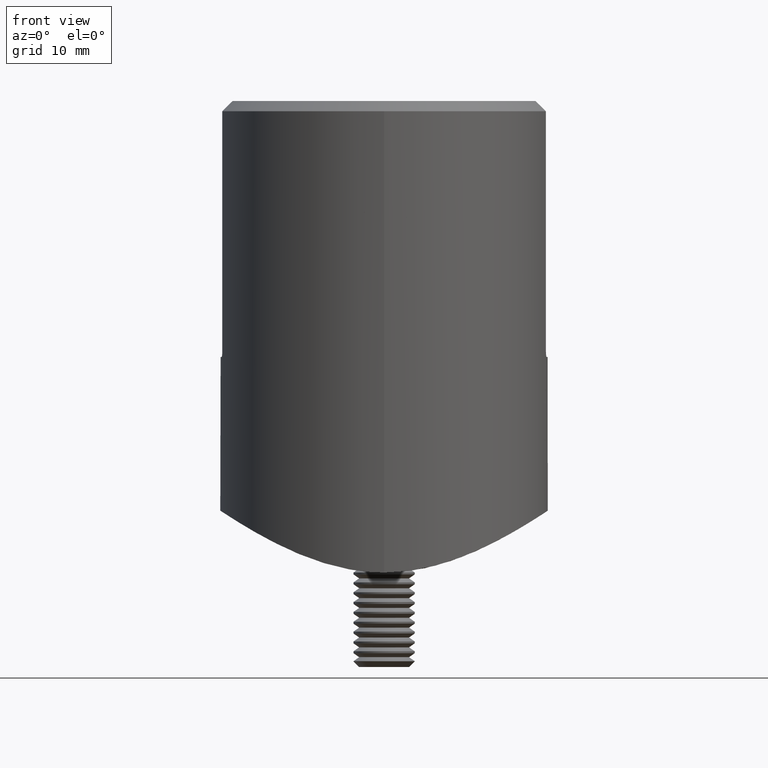
[diagram: clean part render]
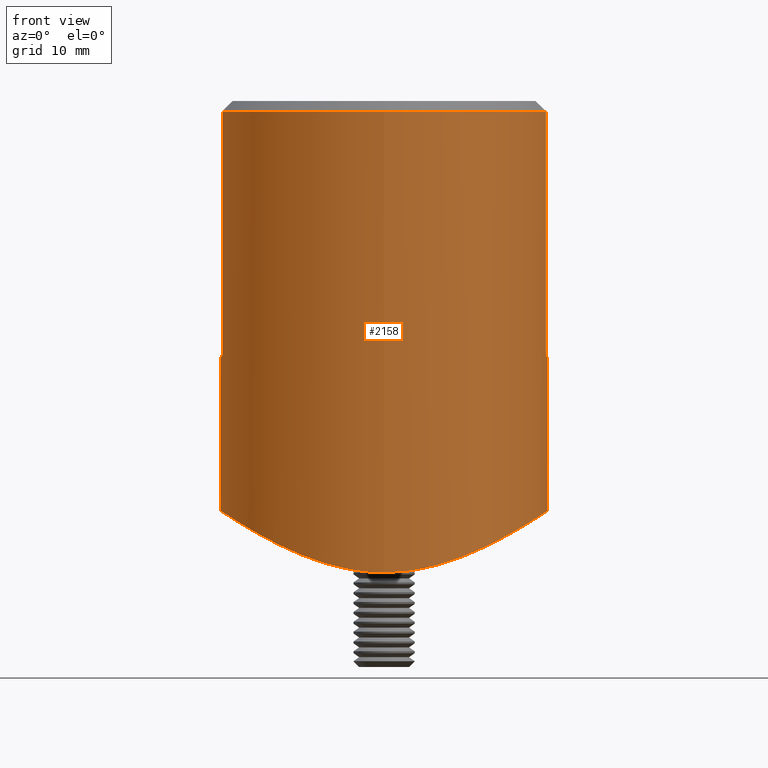
[diagram: same view with one face highlighted and labeled with its STEP entity id]
A machine part, front view. The second image highlights one B-rep face of the part: STEP entity #2158.
In plain terms, the highlighted cylindrical surface (bore or boss wall) has radius 16 mm, axis along (0, 0, 1).
Its self-contained STEP definition (entity closure, byte-faithful):
#216 = ORIENTED_EDGE ( 'NONE', *, *, #2534, .T. ) ;
#402 = DIRECTION ( 'NONE',  ( -0.000000000000000000, 1.917242093807535139E-17, 1.000000000000000000 ) ) ;
#466 = CARTESIAN_POINT ( 'NONE',  ( 15.79371919867144136, 2.616272217921148613, -0.1363004596202186947 ) ) ;
#522 = CARTESIAN_POINT ( 'NONE',  ( 14.95563363188369266, 5.710106644252819663, -0.6794098254428180272 ) ) ;
#591 = CARTESIAN_POINT ( 'NONE',  ( 12.62176200684239191, -9.846507538453467490, -2.094211661919233247 ) ) ;
#658 = CARTESIAN_POINT ( 'NONE',  ( 9.405360773510359707, 12.95361465355690633, -3.765147110836237321 ) ) ;
#719 = CARTESIAN_POINT ( 'NONE',  ( 15.80348062927910568, -2.500000000000001332, 40.00000000000000000 ) ) ;
#729 = CARTESIAN_POINT ( 'NONE',  ( 7.257517988654522689, 14.29676453896000687, -4.679791360116298371 ) ) ;
#866 = CARTESIAN_POINT ( 'NONE',  ( -15.99794816467258585, 0.5969359833917685654, -0.001359389156640069315 ) ) ;
#934 = CARTESIAN_POINT ( 'NONE',  ( -11.65575784080401434, -10.97273244312415486, -2.632884444330454876 ) ) ;
#1471 = CARTESIAN_POINT ( 'NONE',  ( 15.80348062927910568, -2.500000000000001332, 15.50000000000000000 ) ) ;
#1737 = CARTESIAN_POINT ( 'NONE',  ( -15.80348062927910568, -2.500000000000001332, 15.50000000000000000 ) ) ;
#1980 = CARTESIAN_POINT ( 'NONE',  ( -13.75656379475935331, 8.187093278894256088, -1.424993554051648958 ) ) ;
#2042 = CARTESIAN_POINT ( 'NONE',  ( 16.00116726151856739, 0.1914225812093683643, 0.0007733349810973918917 ) ) ;
#2111 = CARTESIAN_POINT ( 'NONE',  ( -4.180682393895239990, 15.45315847323514014, -5.590306134026122642 ) ) ;
#2158 = ADVANCED_FACE ( 'NONE', ( #11492, #8110 ), #19268, .T. ) ;
#2179 = CARTESIAN_POINT ( 'NONE',  ( 15.87269942450818938, 2.085366050755425693, -0.08418294829182698669 ) ) ;
#2240 = CARTESIAN_POINT ( 'NONE',  ( 1.170603921681730109, 15.96627871179276781, -6.030774535888527410 ) ) ;
#2458 = CARTESIAN_POINT ( 'NONE',  ( -15.46906078396709816, -4.227141528131452830, -0.3489850368061264696 ) ) ;
#2524 = CARTESIAN_POINT ( 'NONE',  ( -4.271786721497110584, -15.42821796419511138, -5.569530185725783511 ) ) ;
#2534 = EDGE_CURVE ( 'NONE', #5738, #5738, #16480, .T. ) ;
#2539 = CARTESIAN_POINT ( 'NONE',  ( 0.000000000000000000, -16.00000000000000000, -6.060707587083456360 ) ) ;
#3293 = CARTESIAN_POINT ( 'NONE',  ( -15.81232862837629938, -2.445192715101429215, 15.23775289447199377 ) ) ;
#3528 = CARTESIAN_POINT ( 'NONE',  ( -14.26013138369663302, 7.274626912516539257, -1.116671590727497998 ) ) ;
#3576 = DIRECTION ( 'NONE',  ( 0.000000000000000000, -1.000000000000000000, 0.000000000000000000 ) ) ;
#3599 = CARTESIAN_POINT ( 'NONE',  ( 15.58357927967789358, 3.665856418184263443, -0.2739839450724232406 ) ) ;
#3660 = CARTESIAN_POINT ( 'NONE',  ( 4.329106418518231081, 15.41232299607198186, -5.556306092099824845 ) ) ;
#3727 = CARTESIAN_POINT ( 'NONE',  ( -9.304716006262591321, 13.02615277267775262, -3.811460302607177830 ) ) ;
#3788 = CARTESIAN_POINT ( 'NONE',  ( 15.41717591279454247, -4.312418119857627019, -0.3824461528097750640 ) ) ;
#3989 = CARTESIAN_POINT ( 'NONE',  ( -14.30623664555755248, -7.183500976693345308, -1.088075539258274826 ) ) ;
#4137 = CARTESIAN_POINT ( 'NONE',  ( -2.166323205413294595, -15.86186468288907570, -5.939313713357383229 ) ) ;
#4761 = EDGE_CURVE ( 'NONE', #15598, #17325, #14005, .T. ) ;
#4943 = CARTESIAN_POINT ( 'NONE',  ( 4.235972059925254385, -15.43817368721777150, -5.577805530753847663 ) ) ;
#5009 = CARTESIAN_POINT ( 'NONE',  ( 8.055983197330027323, -13.83341548606943228, -4.352301560441198092 ) ) ;
#5073 = CARTESIAN_POINT ( 'NONE',  ( -14.49334351529810760, 6.798575864431822602, -0.9712712966562965233 ) ) ;
#5101 = ORIENTED_EDGE ( 'NONE', *, *, #4761, .F. ) ;
#5134 = CARTESIAN_POINT ( 'NONE',  ( 12.04469700821788614, 10.58065287744074290, -2.426045503546000681 ) ) ;
#5138 = CIRCLE ( 'NONE', #11773, 16.00000000000000000 ) ;
#5183 = EDGE_CURVE ( 'NONE', #20015, #5890, #7735, .T. ) ;
#5199 = CARTESIAN_POINT ( 'NONE',  ( 15.87915612435731028, -2.233072326394433649, -0.08045639095373059713 ) ) ;
#5269 = CARTESIAN_POINT ( 'NONE',  ( 5.339497081085301744, 15.09207187364234848, -5.295437691721751605 ) ) ;
#5333 = CARTESIAN_POINT ( 'NONE',  ( 14.29029364764238785, -7.271892710092140000, -1.099347274547963993 ) ) ;
#5393 = CARTESIAN_POINT ( 'NONE',  ( -15.78934269548020275, -2.643255380003342037, -0.1391829441324202998 ) ) ;
#5538 = CARTESIAN_POINT ( 'NONE',  ( -16.00184307667994332, -0.4813483116507977222, 0.001221081403151034637 ) ) ;
#5592 = DIRECTION ( 'NONE',  ( -0.000000000000000000, -0.000000000000000000, -1.000000000000000000 ) ) ;
#5602 = CARTESIAN_POINT ( 'NONE',  ( -13.80893813151768157, -8.098414716521061152, -1.393226828165053499 ) ) ;
#5663 = CARTESIAN_POINT ( 'NONE',  ( -0.5470986920294836908, -16.00000000000000000, -6.060707587083456360 ) ) ;
#5738 = VERTEX_POINT ( 'NONE', #2539 ) ;
#5840 = CARTESIAN_POINT ( 'NONE',  ( 15.80348062927910568, -2.500000000000001332, 38.99999999999999289 ) ) ;
#5890 = VERTEX_POINT ( 'NONE', #13938 ) ;
#5986 = CARTESIAN_POINT ( 'NONE',  ( 15.83982324873985448, -2.260249742456961641, 15.05360751858066592 ) ) ;
#6009 = CARTESIAN_POINT ( 'NONE',  ( -15.87450786638754430, -2.000000000000001332, 15.00000000000000000 ) ) ;
#6037 = CARTESIAN_POINT ( 'NONE',  ( 0.000000000000000000, 4.601381025138083840E-16, 38.99999999999999289 ) ) ;
#6184 = CARTESIAN_POINT ( 'NONE',  ( -15.83976815885563028, -2.260630164236740569, 15.05385874946701996 ) ) ;
#6231 = ORIENTED_EDGE ( 'NONE', *, *, #19470, .T. ) ;
#6356 = EDGE_LOOP ( 'NONE', ( #216 ) ) ;
#6600 = CARTESIAN_POINT ( 'NONE',  ( -7.112501028826681448, 14.34148784321218173, -4.717180975228132844 ) ) ;
#6656 = B_SPLINE_CURVE_WITH_KNOTS ( 'NONE', 3,
 ( #19785, #10620, #5986, #13716, #19711, #1471 ),
 .UNSPECIFIED., .F., .F.,
 ( 4, 2, 4 ),
 ( 0.000000000000000000, 0.0003924426019321293653, 0.0007848852038642587306 ),
 .UNSPECIFIED. ) ;
#6671 = CARTESIAN_POINT ( 'NONE',  ( 5.832189737530938167, 14.90814622194744743, -5.149061170147390953 ) ) ;
#6731 = CARTESIAN_POINT ( 'NONE',  ( 2.245846871773887532, 15.85082146996321839, -5.929685895975737253 ) ) ;
#6743 = VERTEX_POINT ( 'NONE', #6009 ) ;
#6797 = CARTESIAN_POINT ( 'NONE',  ( -11.96820161820922657, 10.66775064926428662, -2.468647751508977528 ) ) ;
#6865 = CARTESIAN_POINT ( 'NONE',  ( 8.147152346691205693, 13.80766758474183398, -4.324908436729998584 ) ) ;
#6942 = CARTESIAN_POINT ( 'NONE',  ( -12.65605391613904729, -9.802472377355556432, -2.074563099192321847 ) ) ;
#7140 = CARTESIAN_POINT ( 'NONE',  ( -1.091737594125006483, -15.97184449192295652, -6.035695437731340540 ) ) ;
#7214 = CARTESIAN_POINT ( 'NONE',  ( -7.184326168040747085, -14.30560106106681317, -4.690721601679261887 ) ) ;
#7373 = DIRECTION ( 'NONE',  ( 0.000000000000000000, -1.917242093807529592E-17, -1.000000000000000000 ) ) ;
#7552 = CARTESIAN_POINT ( 'NONE',  ( 6.691838140982775407, -14.54259171575951015, -4.867886219222805622 ) ) ;
#7735 = LINE ( 'NONE', #11744, #9886 ) ;
#7779 = EDGE_CURVE ( 'NONE', #14333, #6743, #10819, .T. ) ;
#8110 = FACE_OUTER_BOUND ( 'NONE', #6356, .T. ) ;
#8120 = DIRECTION ( 'NONE',  ( -0.000000000000000000, 1.917242093807535139E-17, 1.000000000000000000 ) ) ;
#8140 = CARTESIAN_POINT ( 'NONE',  ( -15.11718815289759021, 5.346137156617637665, -0.5778191536462089495 ) ) ;
#8211 = CARTESIAN_POINT ( 'NONE',  ( 3.816351298954611782, 15.54730613925824301, -5.669618438946493200 ) ) ;
#8270 = CARTESIAN_POINT ( 'NONE',  ( -1.007336184560983394, 16.00510911938679470, -6.065226511276749832 ) ) ;
#8341 = CARTESIAN_POINT ( 'NONE',  ( 13.84958668826982731, 8.078506712855984873, -1.372471316129618035 ) ) ;
#8404 = CARTESIAN_POINT ( 'NONE',  ( 13.79418651813963592, -8.170969574795426738, -1.406079002110336207 ) ) ;
#8528 = ORIENTED_EDGE ( 'NONE', *, *, #5183, .T. ) ;
#8538 = CARTESIAN_POINT ( 'NONE',  ( -15.87070132485760787, -2.101286316957407418, -0.08550165563648010059 ) ) ;
#8617 = CARTESIAN_POINT ( 'NONE',  ( -6.720482080373074041, -14.52938239471439452, -4.857915922262716180 ) ) ;
#8683 = CARTESIAN_POINT ( 'NONE',  ( -15.96882145918868545, 1.135579317373955233, -0.02068271846752229096 ) ) ;
#9137 = DIRECTION ( 'NONE',  ( 0.000000000000000000, 1.000000000000000000, 0.000000000000000000 ) ) ;
#9437 = EDGE_LOOP ( 'NONE', ( #5101, #11682, #8528, #6231, #14964, #15185 ) ) ;
#9633 = CARTESIAN_POINT ( 'NONE',  ( 2.159706864486742539, -15.88909427246574424, -5.961070796418153073 ) ) ;
#9692 = CARTESIAN_POINT ( 'NONE',  ( -15.77059950684551026, 2.752996210554186529, -0.1515142156566659237 ) ) ;
#9700 = CARTESIAN_POINT ( 'NONE',  ( 0.000000000000000000, -5.881307594028002552E-33, 15.00000000000000000 ) ) ;
#9762 = CARTESIAN_POINT ( 'NONE',  ( 15.45241807011881008, 4.184533652713431806, -0.3595549971348003804 ) ) ;
#9831 = CARTESIAN_POINT ( 'NONE',  ( 11.62229650144031368, -11.00807306118256435, -2.650990314033718764 ) ) ;
#9847 = CARTESIAN_POINT ( 'NONE',  ( -15.80348062927910568, -2.500000000000001332, 38.99999999999999289 ) ) ;
#9886 = VECTOR ( 'NONE', #17776, 1000.000000000000000 ) ;
#9901 = CARTESIAN_POINT ( 'NONE',  ( 15.99431597580154651, -1.168673537505431126, -0.003765786805860797063 ) ) ;
#9966 = CARTESIAN_POINT ( 'NONE',  ( -13.48574038042509393, 8.625320401920772539, -1.588236765631089176 ) ) ;
#10104 = CARTESIAN_POINT ( 'NONE',  ( -1.029992063861229212E-15, -16.00000000000000000, -6.060707587083457248 ) ) ;
#10167 = CARTESIAN_POINT ( 'NONE',  ( -10.57755625554804979, -12.04763446109364544, -3.203986529423502372 ) ) ;
#10402 = VECTOR ( 'NONE', #5592, 1000.000000000000000 ) ;
#10620 = CARTESIAN_POINT ( 'NONE',  ( 15.85792072299573796, -2.131656369127064465, 14.99999999999999822 ) ) ;
#10644 = CARTESIAN_POINT ( 'NONE',  ( 9.766460781665777802, -12.71446061683530537, -3.606657268597033728 ) ) ;
#10819 = CIRCLE ( 'NONE', #12085, 16.00000000000000000 ) ;
#11238 = CARTESIAN_POINT ( 'NONE',  ( 15.97045052644325480, 1.009333134051385583, -0.01956897051168994886 ) ) ;
#11306 = CARTESIAN_POINT ( 'NONE',  ( -3.661135091899647698, 15.58479627894000430, -5.701264139691139654 ) ) ;
#11366 = CARTESIAN_POINT ( 'NONE',  ( -10.88047503201043398, 11.74201650271552388, -3.042835143973914747 ) ) ;
#11439 = CARTESIAN_POINT ( 'NONE',  ( 15.55211890162393296, -3.796728918280511067, -0.2945161459306228080 ) ) ;
#11492 = FACE_OUTER_BOUND ( 'NONE', #9437, .T. ) ;
#11578 = CARTESIAN_POINT ( 'NONE',  ( -9.798580526558984261, -12.68970708642835454, -3.591293564623113888 ) ) ;
#11638 = CARTESIAN_POINT ( 'NONE',  ( -12.00083814184373843, -10.59452921702072103, -2.443564785067671163 ) ) ;
#11682 = ORIENTED_EDGE ( 'NONE', *, *, #15603, .T. ) ;
#11707 = CARTESIAN_POINT ( 'NONE',  ( -5.767502013135514360, -14.93331017199234267, -5.168859145420396040 ) ) ;
#11744 = CARTESIAN_POINT ( 'NONE',  ( -15.80348062927910568, -2.500000000000001332, 40.00000000000000000 ) ) ;
#11773 = AXIS2_PLACEMENT_3D ( 'NONE', #6037, #7373, #9137 ) ;
#12085 = AXIS2_PLACEMENT_3D ( 'NONE', #9700, #402, #12648 ) ;
#12592 = EDGE_CURVE ( 'NONE', #14333, #17325, #6656, .T. ) ;
#12648 = DIRECTION ( 'NONE',  ( 0.000000000000000000, -1.000000000000000000, 0.000000000000000000 ) ) ;
#12656 = CARTESIAN_POINT ( 'NONE',  ( 15.87450786638754430, -2.000000000000001332, 15.00000000000000000 ) ) ;
#12685 = CARTESIAN_POINT ( 'NONE',  ( 0.000000000000000000, 0.000000000000000000, 15.00000000000000000 ) ) ;
#12706 = CARTESIAN_POINT ( 'NONE',  ( -2.077452142235387100, 15.90104818763614425, -5.971548852212210434 ) ) ;
#12771 = CARTESIAN_POINT ( 'NONE',  ( 15.95103891270111340, 1.279528136502453117, -0.03241806832863056154 ) ) ;
#12837 = CARTESIAN_POINT ( 'NONE',  ( 10.54538732721427330, -12.07545444568976123, -3.220206405210480849 ) ) ;
#12899 = CARTESIAN_POINT ( 'NONE',  ( 15.99553603855408390, 0.4656932814448229152, -0.002959087871586364715 ) ) ;
#12971 = CARTESIAN_POINT ( 'NONE',  ( 0.6208487109416704897, 15.99715936990605414, -6.058195098075393581 ) ) ;
#13102 = CARTESIAN_POINT ( 'NONE',  ( -2.698014615574829467, -15.78003479184899405, -5.867952484601524077 ) ) ;
#13716 = CARTESIAN_POINT ( 'NONE',  ( 15.81234660620866528, -2.445081645818321103, 15.23751475380075071 ) ) ;
#13842 = CARTESIAN_POINT ( 'NONE',  ( -15.85792382327410088, -2.131631761430428984, 15.00000000000000178 ) ) ;
#13938 = CARTESIAN_POINT ( 'NONE',  ( -15.80348062927910568, -2.500000000000001332, 15.50000000000000000 ) ) ;
#14005 = LINE ( 'NONE', #719, #10402 ) ;
#14147 = CARTESIAN_POINT ( 'NONE',  ( 1.094197384058964495, -15.99999999999999289, -6.060707587083457248 ) ) ;
#14275 = CARTESIAN_POINT ( 'NONE',  ( 10.59797363651233049, 11.99760735811648615, -3.187587715707429492 ) ) ;
#14333 = VERTEX_POINT ( 'NONE', #12656 ) ;
#14344 = CARTESIAN_POINT ( 'NONE',  ( 14.34509709698025759, 7.164033093006461961, -1.065268813231775136 ) ) ;
#14417 = CARTESIAN_POINT ( 'NONE',  ( -5.681077647702396760, 14.96650234030679627, -5.195041561027482935 ) ) ;
#14479 = CARTESIAN_POINT ( 'NONE',  ( 15.13757280436666086, 5.209744302451388975, -0.5628390935212337354 ) ) ;
#14548 = CARTESIAN_POINT ( 'NONE',  ( -8.459093312597692815, 13.59051641193609683, -4.184161256374438587 ) ) ;
#14684 = CARTESIAN_POINT ( 'NONE',  ( -3.750731160879340109, -15.56344424144697669, -5.683220022683340034 ) ) ;
#14752 = CARTESIAN_POINT ( 'NONE',  ( -15.97661245927380413, -1.020989253051415746, -0.01552122591290498038 ) ) ;
#14964 = ORIENTED_EDGE ( 'NONE', *, *, #7779, .F. ) ;
#15185 = ORIENTED_EDGE ( 'NONE', *, *, #12592, .T. ) ;
#15221 = CARTESIAN_POINT ( 'NONE',  ( -1.029992063861229212E-15, -16.00000000000000000, -6.060707587083457248 ) ) ;
#15598 = VERTEX_POINT ( 'NONE', #5840 ) ;
#15603 = EDGE_CURVE ( 'NONE', #15598, #20015, #5138, .T. ) ;
#15830 = CARTESIAN_POINT ( 'NONE',  ( -5.189361106249303468, 15.14426437257655422, -5.337408477004140117 ) ) ;
#15897 = CARTESIAN_POINT ( 'NONE',  ( 10.97242529372790543, 11.65599067032601610, -2.995216615089211221 ) ) ;
#15960 = CARTESIAN_POINT ( 'NONE',  ( 11.96583321127023858, -10.63397491168063880, -2.462905047084172239 ) ) ;
#16027 = CARTESIAN_POINT ( 'NONE',  ( -6.641646619747329616, 14.56569139176137284, -4.885336078572434459 ) ) ;
#16099 = CARTESIAN_POINT ( 'NONE',  ( 14.90884950328212888, -5.830903490816757184, -0.7092087773279027729 ) ) ;
#16163 = CARTESIAN_POINT ( 'NONE',  ( -13.54026441390793067, -8.539660426616640265, -1.555593574312510219 ) ) ;
#16371 = CARTESIAN_POINT ( 'NONE',  ( -14.53574279496352339, -6.707706357839480660, -0.9447248714593228236 ) ) ;
#16429 = B_SPLINE_CURVE_WITH_KNOTS ( 'NONE', 3,
 ( #1737, #17087, #3293, #6184, #13842, #20053 ),
 .UNSPECIFIED., .F., .F.,
 ( 4, 2, 4 ),
 ( 0.000000000000000000, 0.0003924414279784687373, 0.0007848828559569374745 ),
 .UNSPECIFIED. ) ;
#16438 = CARTESIAN_POINT ( 'NONE',  ( -12.96382238779259133, -9.391691524865549923, -1.896255770481248826 ) ) ;
#16444 = AXIS2_PLACEMENT_3D ( 'NONE', #12685, #8120, #3576 ) ;
#16480 = B_SPLINE_CURVE_WITH_KNOTS ( 'NONE', 3,
 ( #15221, #14147, #9633, #16789, #4943, #17260, #19938, #7552, #18362, #5009, #17329, #10644, #12837, #9831, #15960, #591, #19174, #8404, #5333, #16099, #19037, #3788, #11439, #5199, #9901, #2042, #12899, #11238, #12771, #2179, #466, #3599, #9762, #14479, #522, #14344, #8341, #17453, #5134, #15897, #14275, #17591, #658, #6865, #729, #6671, #5269, #3660, #8211, #17661, #6731, #2240, #12971, #8270, #12706, #11306, #2111, #15830, #14417, #16027, #6600, #17523, #14548, #3727, #17394, #19108, #11366, #6797, #19242, #9966, #1980, #3528, #5073, #8140, #18968, #9692, #18011, #8683, #866, #5538, #14752, #8538, #5393, #2458, #17812, #16371, #3989, #5602, #16163, #16438, #6942, #11638, #934, #10167, #11578, #17734, #19524, #7214, #8617, #11707, #19445, #2524, #14684, #13102, #4137, #7140, #5663, #10104 ),
 .UNSPECIFIED., .T., .F.,
 ( 4, 2, 2, 2, 2, 2, 2, 2, 2, 2, 2, 2, 2, 2, 2, 2, 2, 2, 2, 2, 2, 2, 2, 2, 2, 2, 2, 2, 2, 2, 2, 2, 2, 2, 2, 2, 2, 2, 2, 2, 2, 2, 2, 2, 2, 2, 2, 2, 2, 2, 2, 2, 2, 4 ),
 ( 0.000000000000000000, 0.003223419804352816061, 0.004835129706529222790, 0.006446839608705629519, 0.008058549510882036249, 0.009670259413058442111, 0.01289367921741125383, 0.01450538911958766317, 0.01611709902176406903, 0.01934051882611688769, 0.02095222872829330049, 0.02256393863046970982, 0.02578735843482252849, 0.02659321338591073489, 0.02739906833699893435, 0.02901077823917534368, 0.03062248814135175995, 0.03223419804352817275, 0.03545761784788099141, 0.03868103765223381701, 0.04029274755441022982, 0.04190445745658664262, 0.04512787726093947516, 0.04673958716311588102, 0.04835129706529229382, 0.04996300696746871356, 0.05157471686964512636, 0.05479813667399795196, 0.05640984657617437864, 0.05802155647835078450, 0.05963326638052721118, 0.06124497628270362398, 0.06285668618488002291, 0.06446839608705644264, 0.06769181589140926825, 0.06930352579358568799, 0.07091523569576207997, 0.07413865550011491945, 0.07575036540229133919, 0.07736207530446775893, 0.07897378520664417867, 0.08058549510882059841, 0.08380891491317342401, 0.08542062481534982987, 0.08703233471752624961, 0.08864404461970264160, 0.09025575452187906134, 0.09347917432623188694, 0.09509088422840830668, 0.09670259413058471254, 0.09831430403276114616, 0.09992601393493756590, 0.1015377238371139856, 0.1031494337392903915 ),
 .UNSPECIFIED. ) ;
#16789 = CARTESIAN_POINT ( 'NONE',  ( 3.720384633498818427, -15.57050579826421455, -5.689194498092060570 ) ) ;
#17087 = CARTESIAN_POINT ( 'NONE',  ( -15.80348062927910568, -2.500000000000001776, 15.36729166975287697 ) ) ;
#17260 = CARTESIAN_POINT ( 'NONE',  ( 5.247927442803116627, -15.12415034453983331, -5.321200501467015620 ) ) ;
#17325 = VERTEX_POINT ( 'NONE', #17429 ) ;
#17329 = CARTESIAN_POINT ( 'NONE',  ( 8.495717096743067742, -13.56772299453101738, -4.168624231977662298 ) ) ;
#17394 = CARTESIAN_POINT ( 'NONE',  ( -9.712498704241157910, 12.72497741043460096, -3.621066900146125089 ) ) ;
#17429 = CARTESIAN_POINT ( 'NONE',  ( 15.80348062927910568, -2.500000000000001332, 15.50000000000000000 ) ) ;
#17453 = CARTESIAN_POINT ( 'NONE',  ( 12.69212682320155494, 9.797103594906381829, -2.057131358629101126 ) ) ;
#17523 = CARTESIAN_POINT ( 'NONE',  ( -8.021263986042383110, 13.85370955767020895, -4.366485137917087478 ) ) ;
#17591 = CARTESIAN_POINT ( 'NONE',  ( 9.813120848896607740, 12.64761980471788938, -3.573240673723697913 ) ) ;
#17661 = CARTESIAN_POINT ( 'NONE',  ( 2.774721509539157527, 15.76655276112537152, -5.856311338043568959 ) ) ;
#17734 = CARTESIAN_POINT ( 'NONE',  ( -8.530265098163418713, -13.54602483844458582, -4.153891500217307353 ) ) ;
#17776 = DIRECTION ( 'NONE',  ( -0.000000000000000000, -0.000000000000000000, -1.000000000000000000 ) ) ;
#17812 = CARTESIAN_POINT ( 'NONE',  ( -15.15404043020480174, -5.242101809108152821, -0.5541244680342546358 ) ) ;
#18011 = CARTESIAN_POINT ( 'NONE',  ( -15.85561330968935501, 2.211860247640967447, -0.09545433595107352676 ) ) ;
#18362 = CARTESIAN_POINT ( 'NONE',  ( 7.154884648627406918, -14.32026099450444434, -4.701545753885493895 ) ) ;
#18968 = CARTESIAN_POINT ( 'NONE',  ( -15.43887685946221389, 4.336388944839841386, -0.3686320152584622867 ) ) ;
#19037 = CARTESIAN_POINT ( 'NONE',  ( 15.09464493303507915, -5.332725148751536359, -0.5903818280635929616 ) ) ;
#19108 = CARTESIAN_POINT ( 'NONE',  ( -10.49959038460867156, 12.08371974730422593, -3.237184278941376281 ) ) ;
#19174 = CARTESIAN_POINT ( 'NONE',  ( 12.93048036955168634, -9.437359735911471148, -1.915661967294443713 ) ) ;
#19242 = CARTESIAN_POINT ( 'NONE',  ( -12.61855472977413228, 9.890270931969920909, -2.099324499909846597 ) ) ;
#19268 = CYLINDRICAL_SURFACE ( 'NONE', #16444, 16.00000000000000000 ) ;
#19445 = CARTESIAN_POINT ( 'NONE',  ( -5.278373244262676067, -15.11346575868433106, -5.312619055958327507 ) ) ;
#19470 = EDGE_CURVE ( 'NONE', #5890, #6743, #16429, .T. ) ;
#19524 = CARTESIAN_POINT ( 'NONE',  ( -8.088653046042615813, -13.81442927188584591, -4.339011095005590235 ) ) ;
#19711 = CARTESIAN_POINT ( 'NONE',  ( 15.80348062927911279, -2.500000000000001332, 15.36726831469455590 ) ) ;
#19785 = CARTESIAN_POINT ( 'NONE',  ( 15.87450786638754430, -2.000000000000001332, 15.00000000000000000 ) ) ;
#19938 = CARTESIAN_POINT ( 'NONE',  ( 5.738354001008402427, -14.94452959699634853, -5.177706496297949101 ) ) ;
#20015 = VERTEX_POINT ( 'NONE', #9847 ) ;
#20053 = CARTESIAN_POINT ( 'NONE',  ( -15.87450786638754430, -2.000000000000001332, 15.00000000000000000 ) ) ;